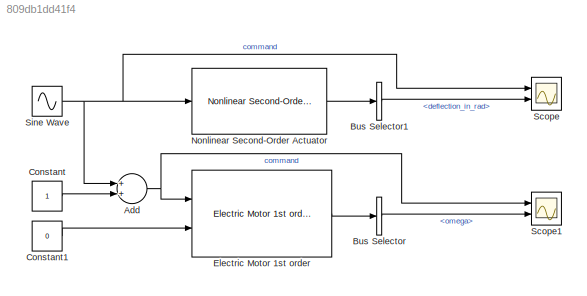
MODEL slx_809db1dd41f4
KIND model
CONFIG AbsTol = auto
CONFIG EnableMultiTasking = off
CONFIG FixedStep = auto
CONFIG MaxStep = auto
CONFIG MinStep = auto
CONFIG RelTol = 1e-3
CONFIG SampleTimeConstraint = Unconstrained
CONFIG Solver = VariableStepAuto
CONFIG SolverName = VariableStepAuto
CONFIG StartTime = 0.0
CONFIG StopTime = 10.0
BLOCK [Sum] Add
  InputSameDT = off
  OutDataTypeStr = Inherit: Inherit via internal rule
  Ports = [2, 1]
  SaturateOnIntegerOverflow = off
BLOCK [BusSelector] Bus Selector
  OutputAsBus = off
  OutputSignals = omega
  Ports = [1, 1]
BLOCK [BusSelector] Bus Selector1
  OutputAsBus = off
  OutputSignals = deflection_in_rad
  Ports = [1, 1]
BLOCK [Constant] Constant
BLOCK [Constant] Constant1
  Value = 0
BLOCK [Reference] Electric Motor 1st order  REF=actuators_lib/Electric Motor 1st order  (lib defined in slx_c2decc952d1f)
  Ports = [2, 1]
  SourceBlock = actuators_lib/Electric Motor 1st order
  SourceProductName = LADAC
BLOCK [Reference] Nonlinear Second-Order Actuator  REF=actuators_lib/Nonlinear Second-Order Actuator  (lib defined in slx_c2decc952d1f)
  Ports = [1, 1]
  SourceBlock = actuators_lib/Nonlinear Second-Order Actuator
  SourceProductName = LADAC
BLOCK [Scope] Scope
  Floating = off
  NumInputPorts = 2
  Ports = [2]
  ScopeSpecificationString = Simulink.scopes.TimeScopeBlockCfg('CurrentConfiguration', extmgr.ConfigurationSet(extmgr.Configuration('Core','General UI',true),extmgr.Configuration('Core','Source UI',true),extmgr.Configuration('Sources','WiredSimulink',true),extmgr.Configuration('Visuals','Time Domain',true,'SerializedDisplays',{struct('MinYLimReal','-1.24868','MaxYLimReal','1.24916','YLabelReal','','MinYLimMag','0.00000','MaxY...<+1403ch>
BLOCK [Scope] Scope1
  Floating = off
  NumInputPorts = 2
  Ports = [2]
  ScopeSpecificationString = Simulink.scopes.TimeScopeBlockCfg('CurrentConfiguration', extmgr.ConfigurationSet(extmgr.Configuration('Core','General UI',true),extmgr.Configuration('Core','Source UI',true),extmgr.Configuration('Sources','WiredSimulink',true,'DataLoggingVariableName','ScopeData1'),extmgr.Configuration('Visuals','Time Domain',true,'SerializedDisplays',{struct('MinYLimReal','-24.06852','MaxYLimReal','216.61665','Y...<+1440ch>
BLOCK [Sin] Sine Wave
  Ports = [0, 1]
  SampleTime = 0
NET Add:1 -> Electric Motor 1st order:1, Scope1:1
LINE Bus Selector1:1 -> Scope:2
LINE Bus Selector:1 -> Scope1:2
LINE Constant1:1 -> Electric Motor 1st order:2
LINE Constant:1 -> Add:2
LINE Electric Motor 1st order:1 -> Bus Selector:1
LINE Nonlinear Second-Order Actuator:1 -> Bus Selector1:1
NET Sine Wave:1 -> Add:1, Nonlinear Second-Order Actuator:1, Scope:1
note: NET lines group one-source signal fan-out (src -> all destinations, sorted); 1:1 wires keep LINE
